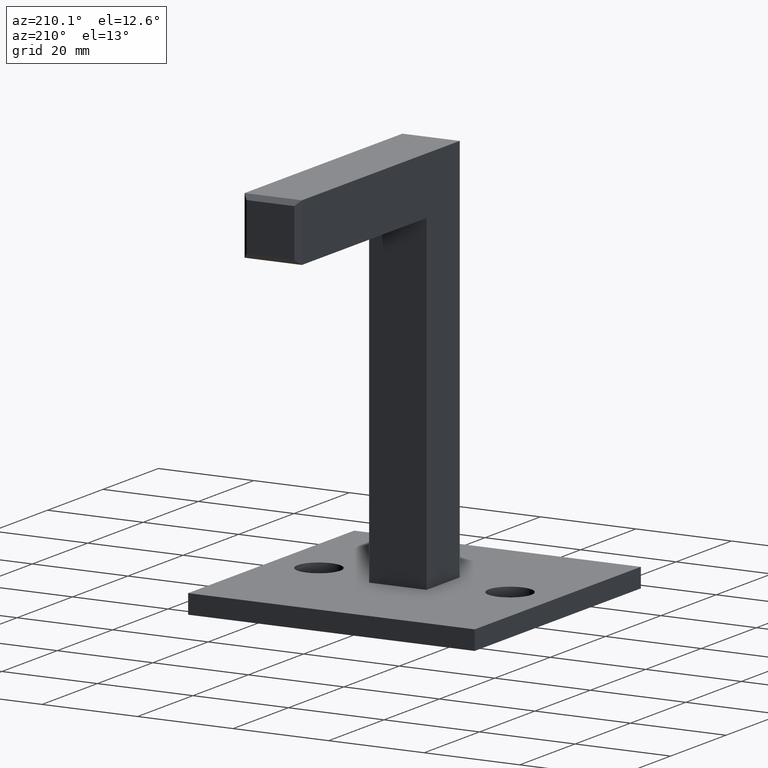
[diagram: clean part render]
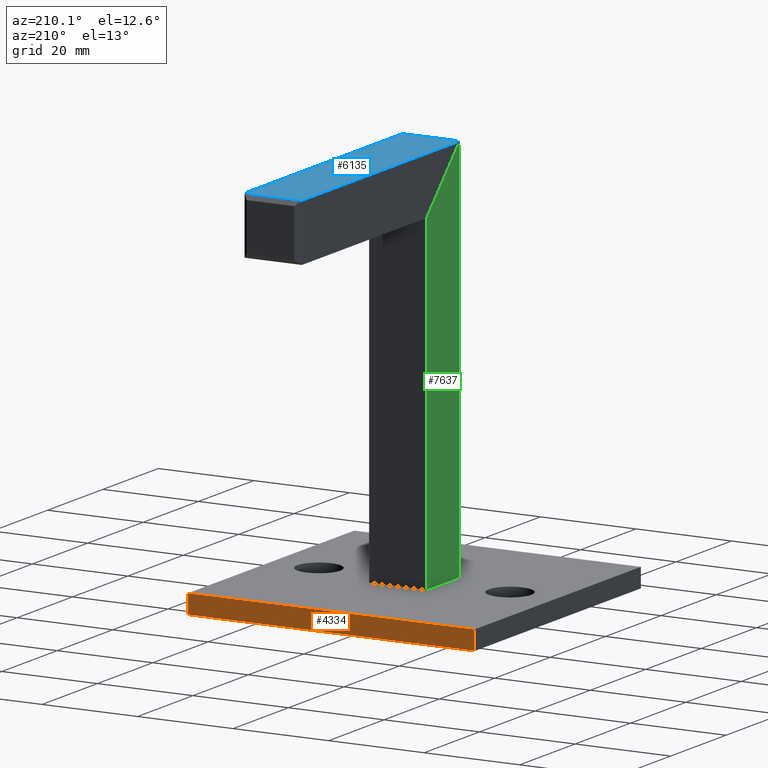
[diagram: same view with three faces highlighted in distinct colors, each labeled with its STEP entity id]
A machine part, auxiliary view with three faces highlighted in distinct colors.
Their STEP definitions:

[orange] entity #4334 — the highlighted planar face has unit normal (0, -1, 0).
#359 = PLANE ( 'NONE',  #2352 ) ;
#805 = LINE ( 'NONE', #5412, #2528 ) ;
#990 = CARTESIAN_POINT ( 'NONE',  ( -30.00000000000001066, 30.00000000000000000, 4.000000000000000000 ) ) ;
#1096 = CARTESIAN_POINT ( 'NONE',  ( -30.00000000000001066, 30.00000000000000000, 4.000000000000000000 ) ) ;
#1145 = VECTOR ( 'NONE', #9390, 1000.000000000000000 ) ;
#1629 = EDGE_LOOP ( 'NONE', ( #6738, #5839, #2346, #1746 ) ) ;
#1637 = CARTESIAN_POINT ( 'NONE',  ( -30.00000000000001066, 30.00000000000000000, 0.000000000000000000 ) ) ;
#1746 = ORIENTED_EDGE ( 'NONE', *, *, #5905, .T. ) ;
#1831 = DIRECTION ( 'NONE',  ( 0.000000000000000000, -0.000000000000000000, -1.000000000000000000 ) ) ;
#2346 = ORIENTED_EDGE ( 'NONE', *, *, #4969, .F. ) ;
#2352 = AXIS2_PLACEMENT_3D ( 'NONE', #1096, #8447, #1831 ) ;
#2371 = CARTESIAN_POINT ( 'NONE',  ( 29.99999999999998934, 30.00000000000000000, 4.000000000000000000 ) ) ;
#2413 = EDGE_CURVE ( 'NONE', #8920, #6006, #7523, .T. ) ;
#2455 = DIRECTION ( 'NONE',  ( -1.000000000000000000, -0.000000000000000000, -0.000000000000000000 ) ) ;
#2522 = VERTEX_POINT ( 'NONE', #2371 ) ;
#2528 = VECTOR ( 'NONE', #9168, 1000.000000000000000 ) ;
#2875 = VECTOR ( 'NONE', #2455, 1000.000000000000000 ) ;
#3122 = FACE_OUTER_BOUND ( 'NONE', #1629, .T. ) ;
#3257 = DIRECTION ( 'NONE',  ( -1.000000000000000000, -0.000000000000000000, -0.000000000000000000 ) ) ;
#3797 = LINE ( 'NONE', #990, #2875 ) ;
#4276 = CARTESIAN_POINT ( 'NONE',  ( 29.99999999999998934, 30.00000000000000000, 0.000000000000000000 ) ) ;
#4334 = ADVANCED_FACE ( 'NONE', ( #3122 ), #359, .F. ) ;
#4701 = LINE ( 'NONE', #6492, #1145 ) ;
#4969 = EDGE_CURVE ( 'NONE', #2522, #9497, #3797, .T. ) ;
#5412 = CARTESIAN_POINT ( 'NONE',  ( 29.99999999999998934, 30.00000000000000000, 4.000000000000000000 ) ) ;
#5786 = VECTOR ( 'NONE', #3257, 1000.000000000000000 ) ;
#5839 = ORIENTED_EDGE ( 'NONE', *, *, #6087, .F. ) ;
#5905 = EDGE_CURVE ( 'NONE', #2522, #8920, #805, .T. ) ;
#6006 = VERTEX_POINT ( 'NONE', #8642 ) ;
#6087 = EDGE_CURVE ( 'NONE', #9497, #6006, #4701, .T. ) ;
#6492 = CARTESIAN_POINT ( 'NONE',  ( -30.00000000000001066, 30.00000000000000000, 4.000000000000000000 ) ) ;
#6738 = ORIENTED_EDGE ( 'NONE', *, *, #2413, .T. ) ;
#7523 = LINE ( 'NONE', #1637, #5786 ) ;
#7589 = CARTESIAN_POINT ( 'NONE',  ( -30.00000000000001066, 30.00000000000000000, 4.000000000000000000 ) ) ;
#8447 = DIRECTION ( 'NONE',  ( 0.000000000000000000, -1.000000000000000000, 0.000000000000000000 ) ) ;
#8642 = CARTESIAN_POINT ( 'NONE',  ( -30.00000000000001066, 30.00000000000000000, 0.000000000000000000 ) ) ;
#8920 = VERTEX_POINT ( 'NONE', #4276 ) ;
#9168 = DIRECTION ( 'NONE',  ( -0.000000000000000000, -0.000000000000000000, -1.000000000000000000 ) ) ;
#9390 = DIRECTION ( 'NONE',  ( -0.000000000000000000, -0.000000000000000000, -1.000000000000000000 ) ) ;
#9497 = VERTEX_POINT ( 'NONE', #7589 ) ;

[blue] entity #6135 — the highlighted planar face has unit normal (0, 0, -1).
#725 = CARTESIAN_POINT ( 'NONE',  ( 5.999999999999998224, 50.99999999999998579, 85.00000000000000000 ) ) ;
#1022 = VECTOR ( 'NONE', #4809, 1000.000000000000000 ) ;
#1098 = EDGE_CURVE ( 'NONE', #4271, #2849, #4440, .T. ) ;
#1118 = VECTOR ( 'NONE', #4356, 1000.000000000000000 ) ;
#1246 = LINE ( 'NONE', #6999, #1022 ) ;
#1477 = DIRECTION ( 'NONE',  ( 1.000000000000000000, 0.000000000000000000, 0.000000000000000000 ) ) ;
#1497 = VECTOR ( 'NONE', #2216, 1000.000000000000000 ) ;
#1540 = CARTESIAN_POINT ( 'NONE',  ( 5.999999999999998224, -6.700000000000017941, 85.00000000000000000 ) ) ;
#2068 = LINE ( 'NONE', #725, #1497 ) ;
#2216 = DIRECTION ( 'NONE',  ( -1.000000000000000000, 0.000000000000000000, 0.000000000000000000 ) ) ;
#2272 = DIRECTION ( 'NONE',  ( -1.000000000000000000, 0.000000000000000000, -0.000000000000000000 ) ) ;
#2514 = LINE ( 'NONE', #3702, #8490 ) ;
#2629 = CARTESIAN_POINT ( 'NONE',  ( -6.000000000000001776, -6.000000000000014211, 85.00000000000000000 ) ) ;
#2849 = VERTEX_POINT ( 'NONE', #6175 ) ;
#2957 = DIRECTION ( 'NONE',  ( 0.000000000000000000, 0.000000000000000000, -1.000000000000000000 ) ) ;
#3390 = ORIENTED_EDGE ( 'NONE', *, *, #1098, .F. ) ;
#3480 = PLANE ( 'NONE',  #6873 ) ;
#3702 = CARTESIAN_POINT ( 'NONE',  ( 5.999999999999998224, -6.000000000000012434, 85.00000000000000000 ) ) ;
#4012 = CARTESIAN_POINT ( 'NONE',  ( 5.999999999999998224, 50.99999999999998579, 85.00000000000000000 ) ) ;
#4039 = EDGE_LOOP ( 'NONE', ( #7877, #6311, #3390, #6500 ) ) ;
#4271 = VERTEX_POINT ( 'NONE', #2629 ) ;
#4356 = DIRECTION ( 'NONE',  ( 0.000000000000000000, 1.000000000000000000, 0.000000000000000000 ) ) ;
#4440 = LINE ( 'NONE', #7275, #1118 ) ;
#4809 = DIRECTION ( 'NONE',  ( 0.000000000000000000, 1.000000000000000000, 0.000000000000000000 ) ) ;
#5267 = EDGE_CURVE ( 'NONE', #7634, #2849, #2068, .T. ) ;
#6135 = ADVANCED_FACE ( 'NONE', ( #6890 ), #3480, .F. ) ;
#6175 = CARTESIAN_POINT ( 'NONE',  ( -6.000000000000001776, 50.99999999999998579, 85.00000000000000000 ) ) ;
#6311 = ORIENTED_EDGE ( 'NONE', *, *, #5267, .T. ) ;
#6500 = ORIENTED_EDGE ( 'NONE', *, *, #7080, .T. ) ;
#6873 = AXIS2_PLACEMENT_3D ( 'NONE', #1540, #2957, #2272 ) ;
#6890 = FACE_OUTER_BOUND ( 'NONE', #4039, .T. ) ;
#6999 = CARTESIAN_POINT ( 'NONE',  ( 5.999999999999998224, -6.700000000000017941, 85.00000000000000000 ) ) ;
#7080 = EDGE_CURVE ( 'NONE', #4271, #7265, #2514, .T. ) ;
#7265 = VERTEX_POINT ( 'NONE', #8480 ) ;
#7275 = CARTESIAN_POINT ( 'NONE',  ( -6.000000000000001776, -6.700000000000017941, 85.00000000000000000 ) ) ;
#7634 = VERTEX_POINT ( 'NONE', #4012 ) ;
#7877 = ORIENTED_EDGE ( 'NONE', *, *, #9241, .T. ) ;
#8480 = CARTESIAN_POINT ( 'NONE',  ( 5.999999999999998224, -6.000000000000019540, 84.99999999999998579 ) ) ;
#8490 = VECTOR ( 'NONE', #1477, 1000.000000000000000 ) ;
#9241 = EDGE_CURVE ( 'NONE', #7265, #7634, #1246, .T. ) ;

[green] entity #7637 — the highlighted planar face has unit normal (1, -0, -0).
#334 = EDGE_CURVE ( 'NONE', #6785, #4271, #9465, .T. ) ;
#422 = EDGE_CURVE ( 'NONE', #6785, #9368, #6476, .T. ) ;
#854 = ORIENTED_EDGE ( 'NONE', *, *, #422, .F. ) ;
#992 = PLANE ( 'NONE',  #6759 ) ;
#1057 = EDGE_LOOP ( 'NONE', ( #854, #2408, #5673, #9264 ) ) ;
#1185 = VECTOR ( 'NONE', #8231, 1000.000000000000000 ) ;
#1307 = VECTOR ( 'NONE', #7552, 1000.000000000000000 ) ;
#1679 = CARTESIAN_POINT ( 'NONE',  ( -5.999999999999994671, 42.49999999999999289, 36.50000000000000000 ) ) ;
#1873 = CARTESIAN_POINT ( 'NONE',  ( -6.000000000000001776, -6.000000000000002665, 4.000000000000000000 ) ) ;
#2408 = ORIENTED_EDGE ( 'NONE', *, *, #334, .T. ) ;
#2629 = CARTESIAN_POINT ( 'NONE',  ( -6.000000000000001776, -6.000000000000014211, 85.00000000000000000 ) ) ;
#3101 = CARTESIAN_POINT ( 'NONE',  ( -6.000000000000001776, -6.000000000000001776, 0.000000000000000000 ) ) ;
#3232 = CARTESIAN_POINT ( 'NONE',  ( -6.000000000000000888, 8.673617379884035472E-16, 4.000000000000000000 ) ) ;
#3568 = EDGE_CURVE ( 'NONE', #9368, #3862, #6847, .T. ) ;
#3766 = DIRECTION ( 'NONE',  ( -1.022195611122249302E-16, -0.7071067811865475727, 0.7071067811865474617 ) ) ;
#3862 = VERTEX_POINT ( 'NONE', #7404 ) ;
#4202 = DIRECTION ( 'NONE',  ( 1.445602896647339163E-16, 1.000000000000000000, 0.000000000000000000 ) ) ;
#4271 = VERTEX_POINT ( 'NONE', #2629 ) ;
#5673 = ORIENTED_EDGE ( 'NONE', *, *, #5764, .F. ) ;
#5764 = EDGE_CURVE ( 'NONE', #3862, #4271, #7459, .T. ) ;
#6427 = VECTOR ( 'NONE', #3766, 1000.000000000000000 ) ;
#6440 = CARTESIAN_POINT ( 'NONE',  ( -6.000000000000000000, 5.999999999999997335, 4.000000000000000000 ) ) ;
#6442 = CARTESIAN_POINT ( 'NONE',  ( -6.000000000000000000, 5.999999999999998224, 0.000000000000000000 ) ) ;
#6476 = LINE ( 'NONE', #3232, #1307 ) ;
#6759 = AXIS2_PLACEMENT_3D ( 'NONE', #6442, #9410, #4202 ) ;
#6785 = VERTEX_POINT ( 'NONE', #1873 ) ;
#6847 = LINE ( 'NONE', #7345, #6956 ) ;
#6956 = VECTOR ( 'NONE', #7381, 1000.000000000000000 ) ;
#6994 = FACE_OUTER_BOUND ( 'NONE', #1057, .T. ) ;
#7345 = CARTESIAN_POINT ( 'NONE',  ( -6.000000000000000000, 5.999999999999998224, 0.000000000000000000 ) ) ;
#7381 = DIRECTION ( 'NONE',  ( 0.000000000000000000, -1.224646799147353207E-16, 1.000000000000000000 ) ) ;
#7404 = CARTESIAN_POINT ( 'NONE',  ( -6.000000000000000000, 5.999999999999985789, 73.00000000000001421 ) ) ;
#7459 = LINE ( 'NONE', #1679, #6427 ) ;
#7552 = DIRECTION ( 'NONE',  ( 1.445602896647339163E-16, 1.000000000000000000, 0.000000000000000000 ) ) ;
#7637 = ADVANCED_FACE ( 'NONE', ( #6994 ), #992, .F. ) ;
#8231 = DIRECTION ( 'NONE',  ( 0.000000000000000000, -1.224646799147353207E-16, 1.000000000000000000 ) ) ;
#9264 = ORIENTED_EDGE ( 'NONE', *, *, #3568, .F. ) ;
#9368 = VERTEX_POINT ( 'NONE', #6440 ) ;
#9410 = DIRECTION ( 'NONE',  ( 1.000000000000000000, -1.445602896647339163E-16, -1.770352960217306030E-32 ) ) ;
#9465 = LINE ( 'NONE', #3101, #1185 ) ;